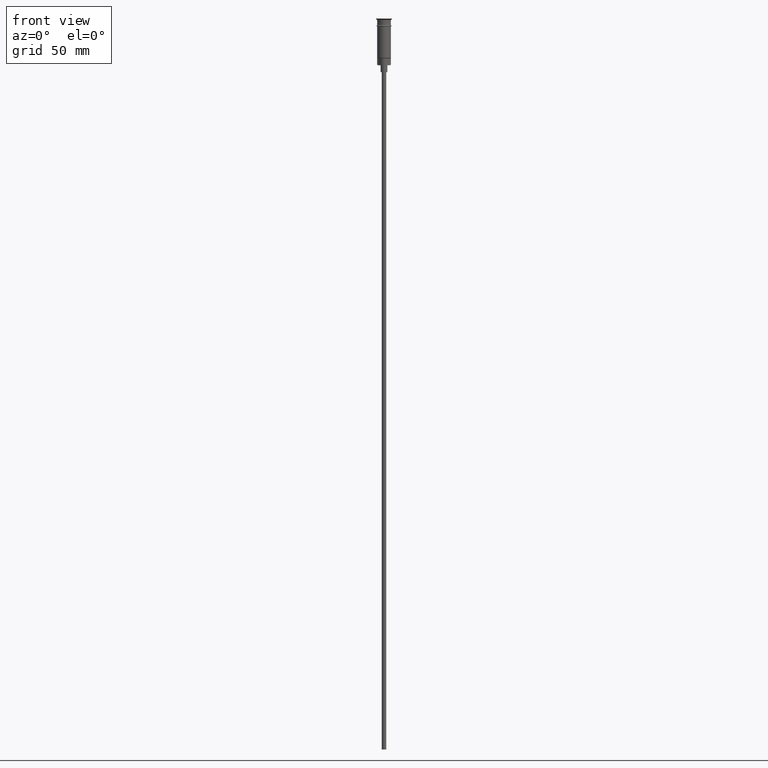
[diagram: clean part render]
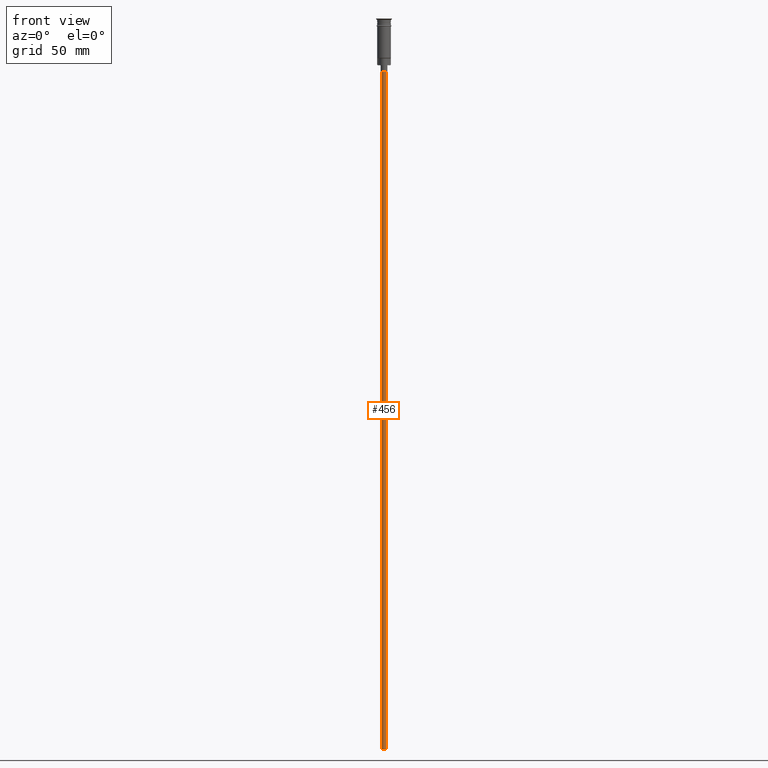
[diagram: same view with one face highlighted and labeled with its STEP entity id]
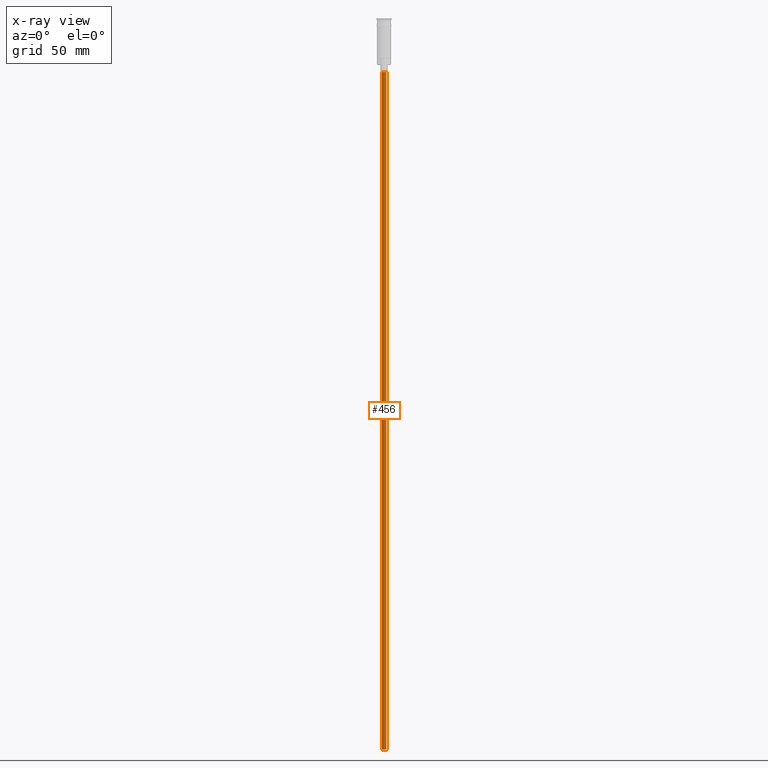
[diagram: x-ray of the same camera — body ghosted, the highlighted face saturated]
A machine part, front view. The second image highlights one B-rep face of the part: STEP entity #456.
The next image is the same camera in x-ray: the body ghosted, the highlighted face saturated — about 0% of this face is hidden behind the body in this view.
In plain terms, the highlighted cylindrical surface (edge-blend (fillet) strip) has radius 1 mm, axis along (-0, -0, 1).
Its self-contained STEP definition (entity closure, byte-faithful):
#24 = CARTESIAN_POINT ( 'NONE',  ( 0.9999999999999997780, 0.000000000000000000, -23.50000000000000000 ) ) ;
#50 = CARTESIAN_POINT ( 'NONE',  ( -0.9999999999999997780, 1.224646799147352961E-16, -320.5000000000000000 ) ) ;
#136 = CIRCLE ( 'NONE', #1220, 0.9999999999999997780 ) ;
#193 = CARTESIAN_POINT ( 'NONE',  ( 0.000000000000000000, 0.000000000000000000, -320.5000000000000000 ) ) ;
#202 = CYLINDRICAL_SURFACE ( 'NONE', #1585, 0.9999999999999997780 ) ;
#254 = CARTESIAN_POINT ( 'NONE',  ( 0.9999999999999997780, 0.000000000000000000, -320.5000000000000000 ) ) ;
#291 = VECTOR ( 'NONE', #639, 1000.000000000000000 ) ;
#294 = CIRCLE ( 'NONE', #328, 0.9999999999999997780 ) ;
#328 = AXIS2_PLACEMENT_3D ( 'NONE', #1105, #1121, #1346 ) ;
#417 = LINE ( 'NONE', #1526, #1091 ) ;
#456 = ADVANCED_FACE ( 'NONE', ( #561 ), #202, .T. ) ;
#561 = FACE_OUTER_BOUND ( 'NONE', #1524, .T. ) ;
#639 = DIRECTION ( 'NONE',  ( -0.000000000000000000, -0.000000000000000000, 1.000000000000000000 ) ) ;
#684 = EDGE_CURVE ( 'NONE', #1054, #1484, #417, .T. ) ;
#689 = DIRECTION ( 'NONE',  ( 0.000000000000000000, 0.000000000000000000, -1.000000000000000000 ) ) ;
#744 = EDGE_CURVE ( 'NONE', #976, #1405, #763, .T. ) ;
#763 = LINE ( 'NONE', #50, #291 ) ;
#767 = ORIENTED_EDGE ( 'NONE', *, *, #744, .F. ) ;
#829 = DIRECTION ( 'NONE',  ( -0.000000000000000000, -0.000000000000000000, 1.000000000000000000 ) ) ;
#870 = CARTESIAN_POINT ( 'NONE',  ( -0.9999999999999997780, 1.224646799147352961E-16, -320.5000000000000000 ) ) ;
#890 = ORIENTED_EDGE ( 'NONE', *, *, #684, .T. ) ;
#914 = DIRECTION ( 'NONE',  ( -1.000000000000000000, 0.000000000000000000, 0.000000000000000000 ) ) ;
#943 = DIRECTION ( 'NONE',  ( 1.000000000000000000, 0.000000000000000000, 0.000000000000000000 ) ) ;
#976 = VERTEX_POINT ( 'NONE', #870 ) ;
#1050 = CARTESIAN_POINT ( 'NONE',  ( 0.000000000000000000, 0.000000000000000000, -320.5000000000000000 ) ) ;
#1054 = VERTEX_POINT ( 'NONE', #254 ) ;
#1062 = ORIENTED_EDGE ( 'NONE', *, *, #1457, .T. ) ;
#1068 = ORIENTED_EDGE ( 'NONE', *, *, #1325, .F. ) ;
#1091 = VECTOR ( 'NONE', #1384, 1000.000000000000000 ) ;
#1105 = CARTESIAN_POINT ( 'NONE',  ( 0.000000000000000000, 0.000000000000000000, -23.50000000000000000 ) ) ;
#1121 = DIRECTION ( 'NONE',  ( 0.000000000000000000, 0.000000000000000000, -1.000000000000000000 ) ) ;
#1220 = AXIS2_PLACEMENT_3D ( 'NONE', #1050, #689, #914 ) ;
#1325 = EDGE_CURVE ( 'NONE', #1054, #976, #136, .T. ) ;
#1346 = DIRECTION ( 'NONE',  ( -1.000000000000000000, 0.000000000000000000, 0.000000000000000000 ) ) ;
#1362 = CARTESIAN_POINT ( 'NONE',  ( -0.9999999999999997780, 1.224646799147352961E-16, -23.50000000000000000 ) ) ;
#1384 = DIRECTION ( 'NONE',  ( -0.000000000000000000, -0.000000000000000000, 1.000000000000000000 ) ) ;
#1405 = VERTEX_POINT ( 'NONE', #1362 ) ;
#1457 = EDGE_CURVE ( 'NONE', #1484, #1405, #294, .T. ) ;
#1484 = VERTEX_POINT ( 'NONE', #24 ) ;
#1524 = EDGE_LOOP ( 'NONE', ( #767, #1068, #890, #1062 ) ) ;
#1526 = CARTESIAN_POINT ( 'NONE',  ( 0.9999999999999997780, 0.000000000000000000, -320.5000000000000000 ) ) ;
#1585 = AXIS2_PLACEMENT_3D ( 'NONE', #193, #829, #943 ) ;